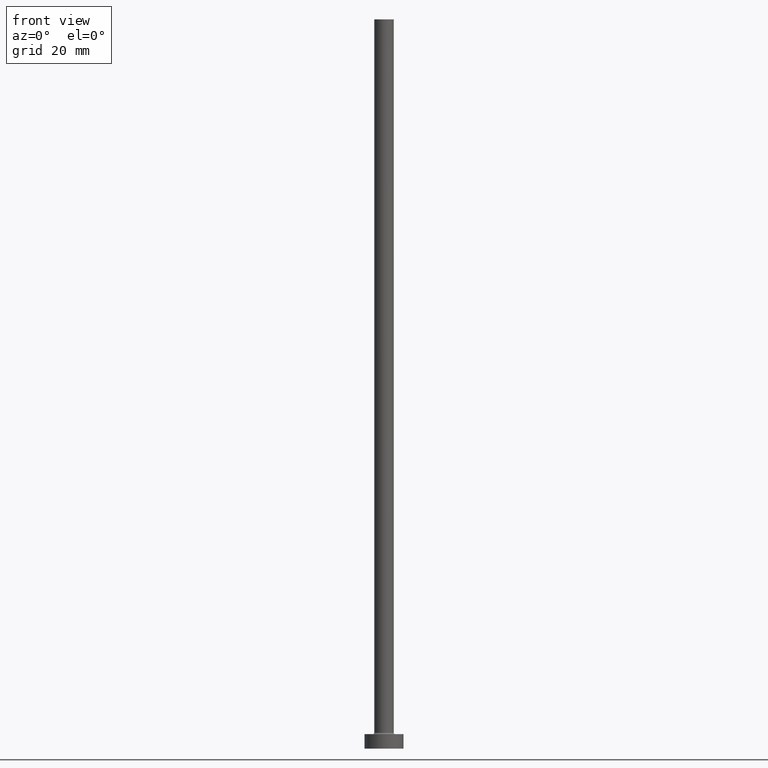
[diagram: clean part render]
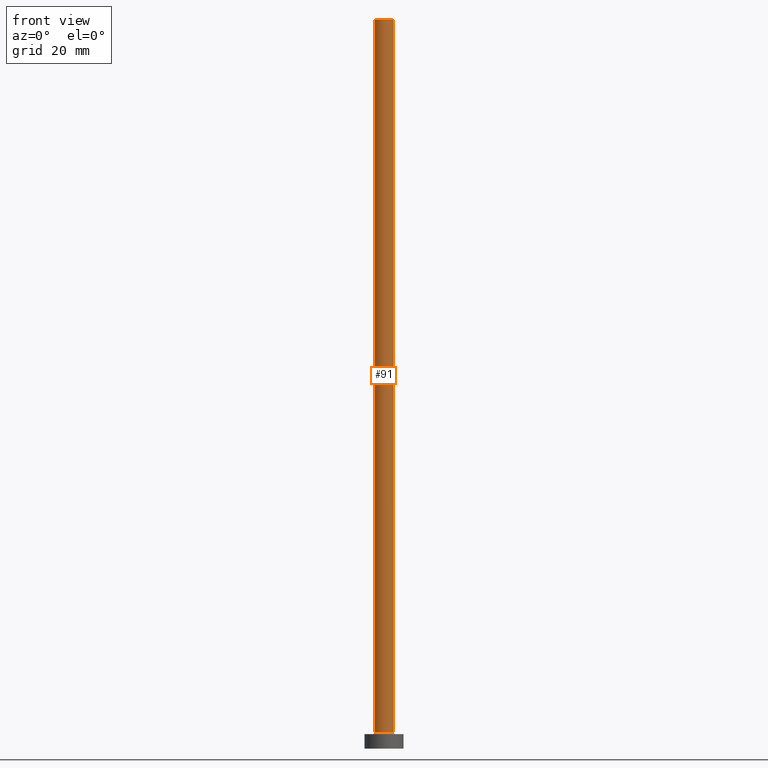
[diagram: same view with one face highlighted and labeled with its STEP entity id]
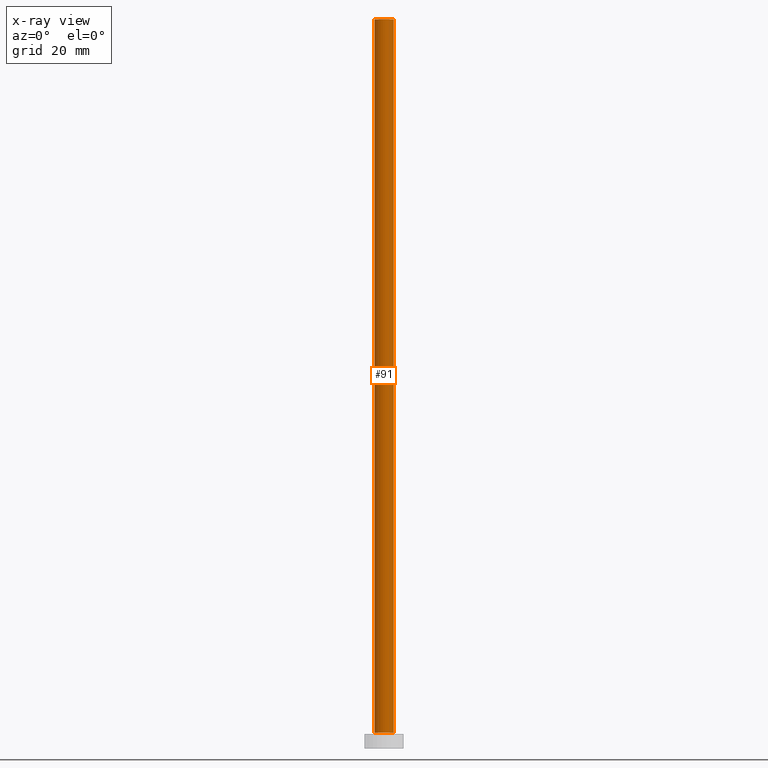
[diagram: x-ray of the same camera — body ghosted, the highlighted face saturated]
A machine part, front view. The second image highlights one B-rep face of the part: STEP entity #91.
The next image is the same camera in x-ray: the body ghosted, the highlighted face saturated — about 0% of this face is hidden behind the body in this view.
In plain terms, the highlighted cylindrical surface (edge-blend (fillet) strip) has radius 2 mm, axis along (-0, -0, -1).
Its self-contained STEP definition (entity closure, byte-faithful):
#3 = VECTOR ( 'NONE', #306, 1000.000000000000000 ) ;
#13 = EDGE_CURVE ( 'NONE', #157, #78, #144, .T. ) ;
#14 = DIRECTION ( 'NONE',  ( -0.000000000000000000, -0.000000000000000000, -1.000000000000000000 ) ) ;
#29 = CARTESIAN_POINT ( 'NONE',  ( 0.000000000000000000, 0.000000000000000000, 150.0000000000000000 ) ) ;
#32 = AXIS2_PLACEMENT_3D ( 'NONE', #29, #246, #131 ) ;
#47 = AXIS2_PLACEMENT_3D ( 'NONE', #317, #452, #59 ) ;
#51 = ORIENTED_EDGE ( 'NONE', *, *, #344, .T. ) ;
#58 = ORIENTED_EDGE ( 'NONE', *, *, #214, .F. ) ;
#59 = DIRECTION ( 'NONE',  ( 1.000000000000000000, 0.000000000000000000, 0.000000000000000000 ) ) ;
#78 = VERTEX_POINT ( 'NONE', #283 ) ;
#91 = ADVANCED_FACE ( 'NONE', ( #355 ), #135, .T. ) ;
#93 = VECTOR ( 'NONE', #14, 1000.000000000000000 ) ;
#114 = CARTESIAN_POINT ( 'NONE',  ( -2.000000000000000000, 0.000000000000000000, 150.0000000000000000 ) ) ;
#115 = ORIENTED_EDGE ( 'NONE', *, *, #13, .T. ) ;
#131 = DIRECTION ( 'NONE',  ( -1.000000000000000000, 0.000000000000000000, 0.000000000000000000 ) ) ;
#135 = CYLINDRICAL_SURFACE ( 'NONE', #32, 2.000000000000000000 ) ;
#142 = DIRECTION ( 'NONE',  ( 0.000000000000000000, 0.000000000000000000, 1.000000000000000000 ) ) ;
#144 = CIRCLE ( 'NONE', #47, 2.000000000000000000 ) ;
#150 = ORIENTED_EDGE ( 'NONE', *, *, #360, .F. ) ;
#157 = VERTEX_POINT ( 'NONE', #185 ) ;
#160 = CARTESIAN_POINT ( 'NONE',  ( -2.000000000000000000, 0.000000000000000000, 150.0000000000000000 ) ) ;
#185 = CARTESIAN_POINT ( 'NONE',  ( -2.000000000000000000, 0.000000000000000000, 3.299999999999997158 ) ) ;
#190 = VERTEX_POINT ( 'NONE', #293 ) ;
#199 = CARTESIAN_POINT ( 'NONE',  ( 2.000000000000000000, 2.449293598294706414E-16, 150.0000000000000000 ) ) ;
#214 = EDGE_CURVE ( 'NONE', #341, #190, #216, .T. ) ;
#216 = CIRCLE ( 'NONE', #264, 2.000000000000000000 ) ;
#221 = DIRECTION ( 'NONE',  ( 1.000000000000000000, 0.000000000000000000, 0.000000000000000000 ) ) ;
#236 = LINE ( 'NONE', #199, #3 ) ;
#246 = DIRECTION ( 'NONE',  ( -0.000000000000000000, -0.000000000000000000, -1.000000000000000000 ) ) ;
#264 = AXIS2_PLACEMENT_3D ( 'NONE', #364, #142, #221 ) ;
#283 = CARTESIAN_POINT ( 'NONE',  ( 2.000000000000000000, 2.449293598294706414E-16, 3.299999999999997158 ) ) ;
#293 = CARTESIAN_POINT ( 'NONE',  ( 2.000000000000000000, 2.449293598294706414E-16, 150.0000000000000000 ) ) ;
#306 = DIRECTION ( 'NONE',  ( -0.000000000000000000, -0.000000000000000000, -1.000000000000000000 ) ) ;
#317 = CARTESIAN_POINT ( 'NONE',  ( 0.000000000000000000, 0.000000000000000000, 3.299999999999997158 ) ) ;
#341 = VERTEX_POINT ( 'NONE', #114 ) ;
#344 = EDGE_CURVE ( 'NONE', #341, #157, #407, .T. ) ;
#355 = FACE_OUTER_BOUND ( 'NONE', #442, .T. ) ;
#360 = EDGE_CURVE ( 'NONE', #190, #78, #236, .T. ) ;
#364 = CARTESIAN_POINT ( 'NONE',  ( 0.000000000000000000, 0.000000000000000000, 150.0000000000000000 ) ) ;
#407 = LINE ( 'NONE', #160, #93 ) ;
#442 = EDGE_LOOP ( 'NONE', ( #150, #58, #51, #115 ) ) ;
#452 = DIRECTION ( 'NONE',  ( 0.000000000000000000, 0.000000000000000000, 1.000000000000000000 ) ) ;